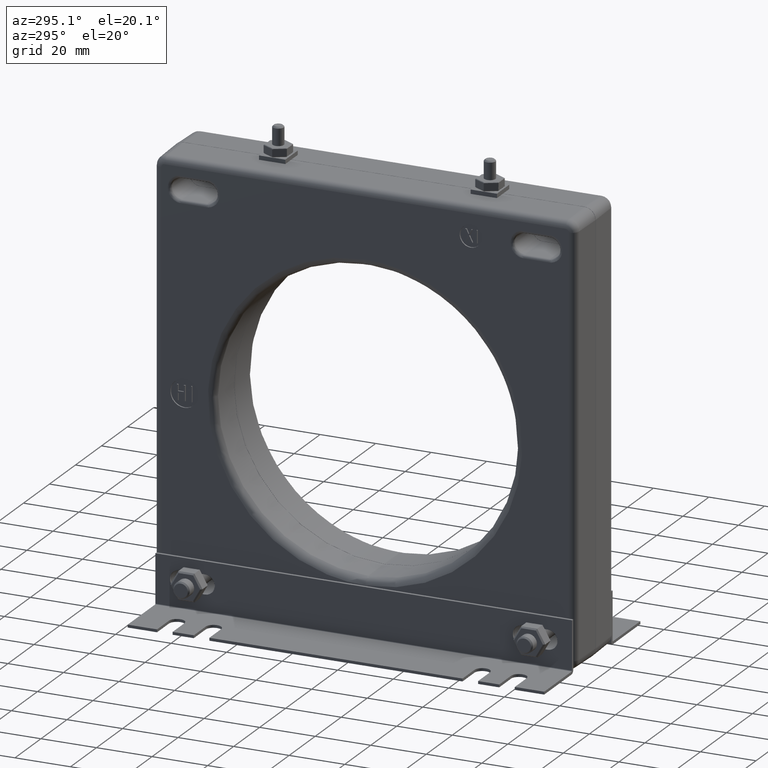
[diagram: clean part render]
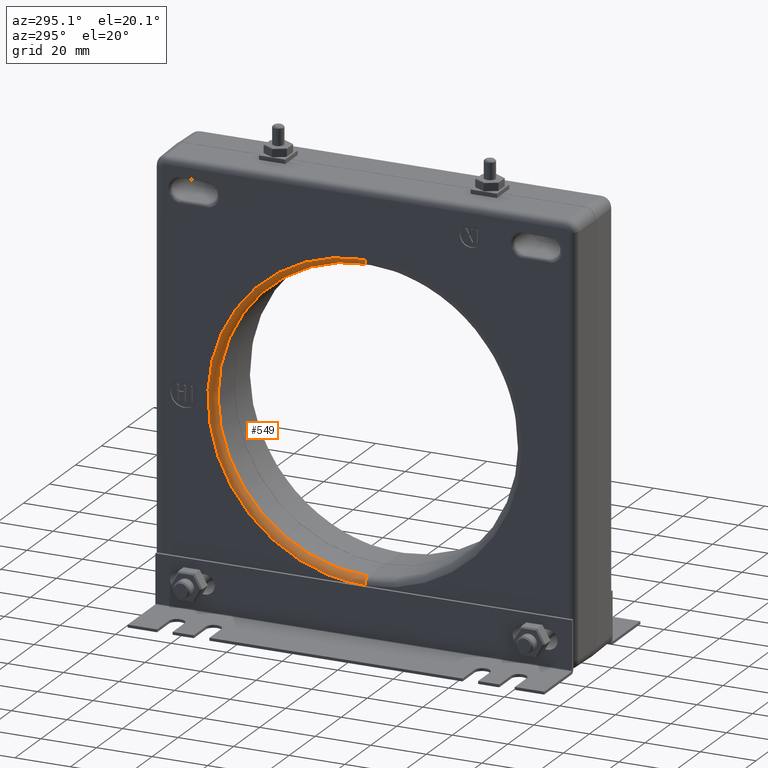
[diagram: same view with one face highlighted and labeled with its STEP entity id]
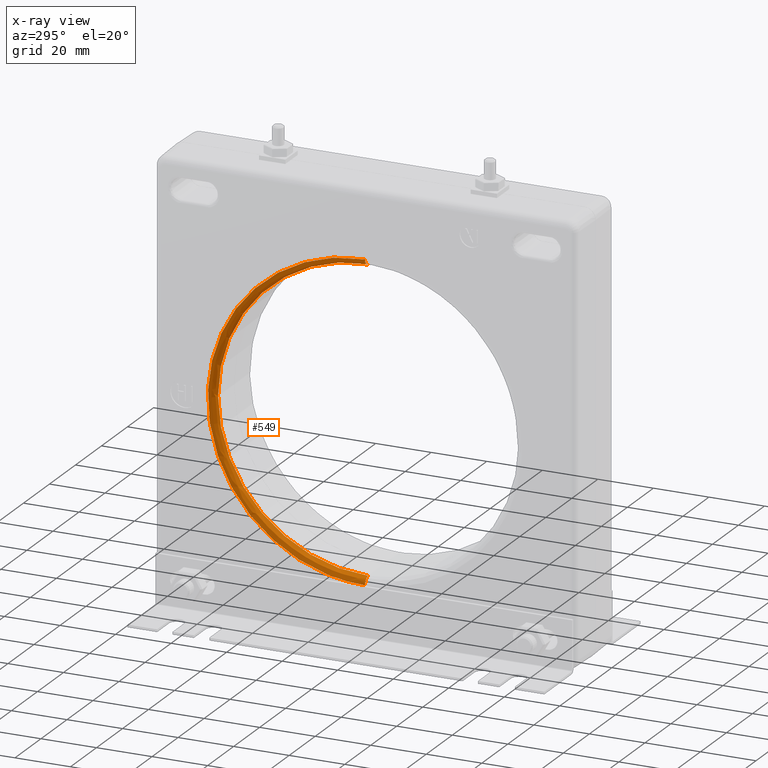
[diagram: x-ray of the same camera — body ghosted, the highlighted face saturated]
A machine part, auxiliary view. The second image highlights one B-rep face of the part: STEP entity #549.
The next image is the same camera in x-ray: the body ghosted, the highlighted face saturated — about 0% of this face is hidden behind the body in this view.
In plain terms, the highlighted face is a freeform B-spline surface patch.
Its self-contained STEP definition (entity closure, byte-faithful):
#358 = VERTEX_POINT ( 'NONE', #13406 ) ;
#446 = DIRECTION ( 'NONE',  ( 0.000000000000000000, 1.000000000000000000, 0.000000000000000000 ) ) ;
#549 = ADVANCED_FACE ( 'NONE', ( #4647 ), #8016, .T. ) ;
#1410 = EDGE_CURVE ( 'NONE', #358, #1875, #12890, .T. ) ;
#1875 = VERTEX_POINT ( 'NONE', #2435 ) ;
#2435 = CARTESIAN_POINT ( 'NONE',  ( 0.1369363646162497228, 1.080301881736312710E-15, -2.129164783009890982 ) ) ;
#2795 = ORIENTED_EDGE ( 'NONE', *, *, #1410, .T. ) ;
#2913 = ORIENTED_EDGE ( 'NONE', *, *, #11198, .T. ) ;
#3354 = VERTEX_POINT ( 'NONE', #7024 ) ;
#3686 = CARTESIAN_POINT ( 'NONE',  ( 0.03937007874015707037, 1.092355033000180582E-15, 2.227586232135137845 ) ) ;
#4183 = EDGE_CURVE ( 'NONE', #5997, #3354, #10937, .T. ) ;
#4294 = CARTESIAN_POINT ( 'NONE',  ( 0.1369363646162497228, 8.195543980992795572E-16, 0.000000000000000000 ) ) ;
#4647 = FACE_OUTER_BOUND ( 'NONE', #8970, .T. ) ;
#4847 = CARTESIAN_POINT ( 'NONE',  ( 0.03937007874015707037, 4.340656474842682577, -2.170328237421341289 ) ) ;
#4918 = CARTESIAN_POINT ( 'NONE',  ( 0.1369363646162970460, 1.080301881736895283E-15, 2.129164783014648510 ) ) ;
#5867 = CARTESIAN_POINT ( 'NONE',  ( 0.1369363646162970460, 8.195543980992795572E-16, -2.129164783014648510 ) ) ;
#5933 = CARTESIAN_POINT ( 'NONE',  ( 0.1369363646162970460, 4.258329566029297020, -2.129164783014648510 ) ) ;
#5964 = CARTESIAN_POINT ( 'NONE',  ( 0.1377952755905507698, 1.092355033000180582E-15, 2.227586232135137845 ) ) ;
#5997 = VERTEX_POINT ( 'NONE', #9395 ) ;
#6535 = DIRECTION ( 'NONE',  ( 2.726504323601520048E-15, 0.000000000000000000, -1.000000000000000000 ) ) ;
#6754 = CARTESIAN_POINT ( 'NONE',  ( 0.07968055011149095812, 4.259328893876173083, 2.129664446938086098 ) ) ;
#6823 = CARTESIAN_POINT ( 'NONE',  ( 0.03937007874015707037, 8.195543980992795572E-16, -2.227586232135137845 ) ) ;
#6892 = CARTESIAN_POINT ( 'NONE',  ( 0.07968055011149094424, 8.195543980992795572E-16, -2.129664446938086986 ) ) ;
#7024 = CARTESIAN_POINT ( 'NONE',  ( 0.1369363646162497228, 8.195543980992795572E-16, 2.129164783009890982 ) ) ;
#7289 = AXIS2_PLACEMENT_3D ( 'NONE', #4294, #11586, #6535 ) ;
#7915 = CARTESIAN_POINT ( 'NONE',  ( 0.07968055011149094424, 1.080363072919344165E-15, 2.129664446938086986 ) ) ;
#8016 =( BOUNDED_SURFACE ( )  B_SPLINE_SURFACE ( 3, 3, ( 
 ( #6823, #8809, #10030, #3686 ),
 ( #12968, #4847, #11056, #8870 ),
 ( #6892, #13092, #6754, #7915 ),
 ( #5867, #5933, #12074, #4918 ) ),
 .UNSPECIFIED., .F., .F., .T. ) 
 B_SPLINE_SURFACE_WITH_KNOTS ( ( 4, 4 ),
 ( 4, 4 ),
 ( 0.000000000000000000, 1.000000000000000000 ),
 ( 0.000000000000000000, 1.000000000000000000 ),
 .UNSPECIFIED. ) 
 GEOMETRIC_REPRESENTATION_ITEM ( )  RATIONAL_B_SPLINE_SURFACE ( (
 ( 1.000000000000000000, 0.3333333333333334259, 0.3333333333333334259, 1.000000000000000000),
 ( 0.8067902504155339827, 0.2689300834718447164, 0.2689300834718447164, 0.8067902504155339827),
 ( 0.8067902504155339827, 0.2689300834718447164, 0.2689300834718447164, 0.8067902504155339827),
 ( 1.000000000000000000, 0.3333333333333334259, 0.3333333333333334259, 1.000000000000000000) ) ) 
 REPRESENTATION_ITEM ( '' )  SURFACE ( )  );
#8089 = CARTESIAN_POINT ( 'NONE',  ( 0.03937007874015707037, 4.455172464270276578, 2.227586232135137401 ) ) ;
#8137 = ORIENTED_EDGE ( 'NONE', *, *, #9603, .T. ) ;
#8809 = CARTESIAN_POINT ( 'NONE',  ( 0.03937007874015707037, 4.455172464270275690, -2.227586232135137845 ) ) ;
#8870 = CARTESIAN_POINT ( 'NONE',  ( 0.03937007874015707037, 1.085342951004995839E-15, 2.170328237421341289 ) ) ;
#8907 = DIRECTION ( 'NONE',  ( 0.000000000000000000, 0.000000000000000000, -1.000000000000000000 ) ) ;
#8970 = EDGE_LOOP ( 'NONE', ( #11697, #2913, #2795, #8137 ) ) ;
#9395 = CARTESIAN_POINT ( 'NONE',  ( 0.03937007874015716058, 1.092355033000180582E-15, 2.227586232135137845 ) ) ;
#9603 = EDGE_CURVE ( 'NONE', #1875, #3354, #11893, .T. ) ;
#10030 = CARTESIAN_POINT ( 'NONE',  ( 0.03937007874015707037, 4.455172464270275690, 2.227586232135137401 ) ) ;
#10830 = CARTESIAN_POINT ( 'NONE',  ( 0.1377952755905507698, 8.195543980992795572E-16, -2.227586232135137845 ) ) ;
#10937 = CIRCLE ( 'NONE', #12026, 0.09842519685039378963 ) ;
#11056 = CARTESIAN_POINT ( 'NONE',  ( 0.03937007874015707037, 4.340656474842682577, 2.170328237421340400 ) ) ;
#11151 = AXIS2_PLACEMENT_3D ( 'NONE', #10830, #446, #8907 ) ;
#11198 = EDGE_CURVE ( 'NONE', #5997, #358, #12564, .T. ) ;
#11586 = DIRECTION ( 'NONE',  ( 1.000000000000000000, -0.000000000000000000, -0.000000000000000000 ) ) ;
#11697 = ORIENTED_EDGE ( 'NONE', *, *, #4183, .F. ) ;
#11893 = CIRCLE ( 'NONE', #7289, 2.129164783009890538 ) ;
#11940 = DIRECTION ( 'NONE',  ( 0.000000000000000000, -1.000000000000000000, 1.224646799147353207E-16 ) ) ;
#12026 = AXIS2_PLACEMENT_3D ( 'NONE', #5964, #11940, #12889 ) ;
#12074 = CARTESIAN_POINT ( 'NONE',  ( 0.1369363646162970460, 4.258329566029297020, 2.129164783014647622 ) ) ;
#12251 = CARTESIAN_POINT ( 'NONE',  ( 0.03937007874015707037, 4.455172464270276578, -2.227586232135137845 ) ) ;
#12564 =( BOUNDED_CURVE ( )  B_SPLINE_CURVE ( 3, ( #13207, #8089, #12251, #13340 ),
 .UNSPECIFIED., .F., .F. ) 
 B_SPLINE_CURVE_WITH_KNOTS ( ( 4, 4 ),
 ( 0.5000000000000000000, 1.000000000000000000 ),
 .UNSPECIFIED. ) 
 CURVE ( )  GEOMETRIC_REPRESENTATION_ITEM ( )  RATIONAL_B_SPLINE_CURVE ( ( 1.000000000000000000, 0.3333333333333333703, 0.3333333333333333703, 1.000000000000000000 ) ) 
 REPRESENTATION_ITEM ( '' )  );
#12889 = DIRECTION ( 'NONE',  ( 0.000000000000000000, 1.224646799147349263E-16, 1.000000000000000000 ) ) ;
#12890 = CIRCLE ( 'NONE', #11151, 0.09842519685039378963 ) ;
#12968 = CARTESIAN_POINT ( 'NONE',  ( 0.03937007874015707037, 8.195543980992795572E-16, -2.170328237421341289 ) ) ;
#13092 = CARTESIAN_POINT ( 'NONE',  ( 0.07968055011149095812, 4.259328893876173083, -2.129664446938086542 ) ) ;
#13207 = CARTESIAN_POINT ( 'NONE',  ( 0.03937007874015716058, 1.092355033000180582E-15, 2.227586232135137845 ) ) ;
#13340 = CARTESIAN_POINT ( 'NONE',  ( 0.03937007874015716058, 8.195543980992795572E-16, -2.227586232135137845 ) ) ;
#13406 = CARTESIAN_POINT ( 'NONE',  ( 0.03937007874015716058, 8.195543980992795572E-16, -2.227586232135137845 ) ) ;